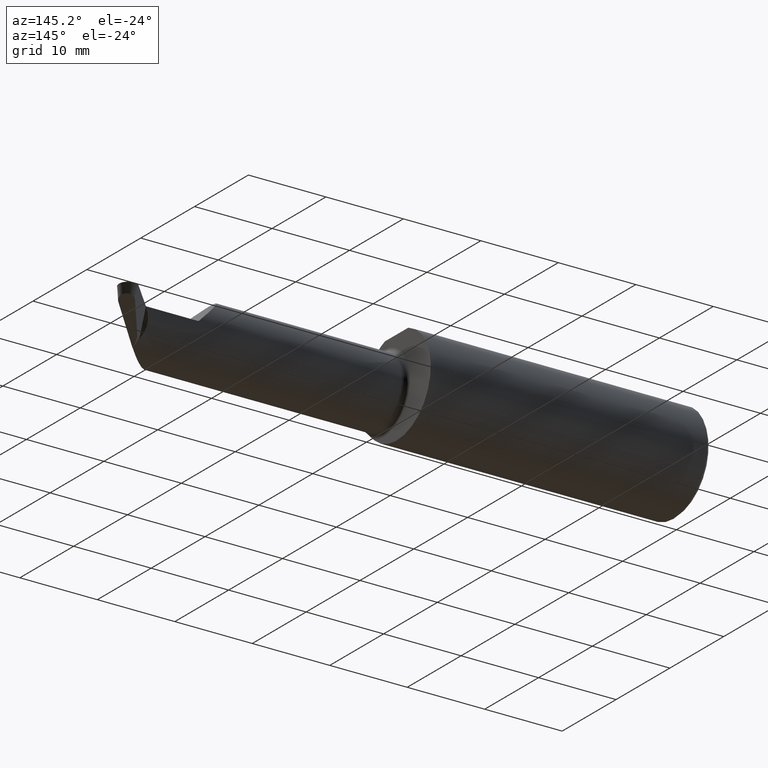
[diagram: clean part render]
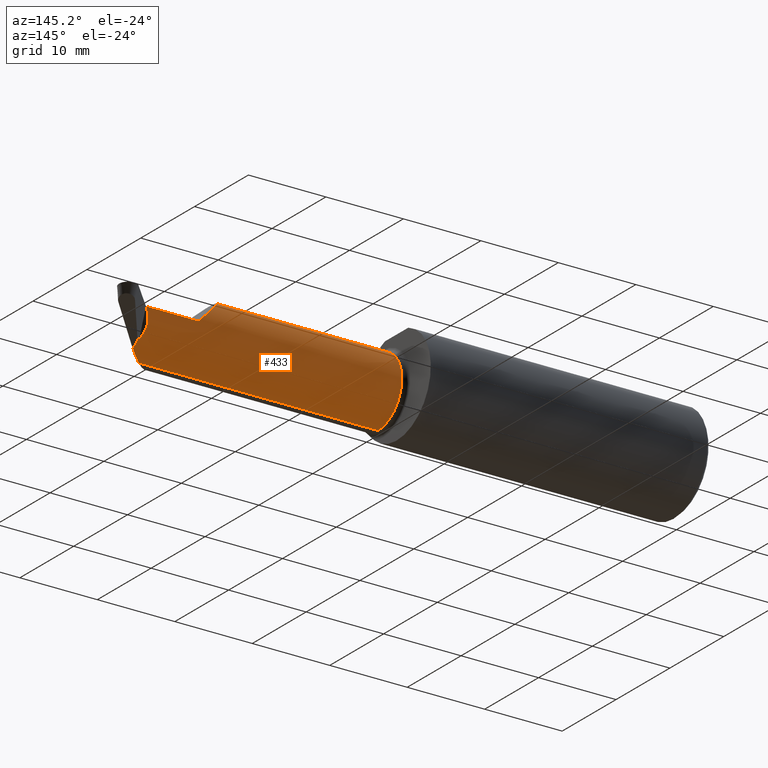
[diagram: same view with one face highlighted and labeled with its STEP entity id]
A machine part, auxiliary view. The second image highlights one B-rep face of the part: STEP entity #433.
In plain terms, the highlighted cylindrical surface (partial cylindrical patch) has radius 4.4196 mm, axis along (-1, -0, -0).
Its self-contained STEP definition (entity closure, byte-faithful):
#16 = CARTESIAN_POINT ( 'NONE',  ( 2.744463120595628247, 0.02262425438726834923, -0.1236489610651902854 ) ) ;
#18 = CARTESIAN_POINT ( 'NONE',  ( 2.731886890911535026, 0.06820596704990193604, -0.04548531219329627479 ) ) ;
#23 = CARTESIAN_POINT ( 'NONE',  ( 2.729262707662182486, 0.05521386511994788582, -0.07917076052382532314 ) ) ;
#29 = CARTESIAN_POINT ( 'NONE',  ( 2.747209855509363141, 0.07415000000000039615, 1.912293595564984056E-15 ) ) ;
#40 = CARTESIAN_POINT ( 'NONE',  ( 2.747209855509363585, -0.02183442268399144945, -0.1555299639813816637 ) ) ;
#49 = LINE ( 'NONE', #364, #88 ) ;
#60 = CARTESIAN_POINT ( 'NONE',  ( 1.446699999999999875, -0.09985000000000000819, 0.1740000000000005431 ) ) ;
#69 = CARTESIAN_POINT ( 'NONE',  ( 2.480000000000000426, 0.07415000000000021574, -5.549066237130534971E-17 ) ) ;
#73 = CARTESIAN_POINT ( 'NONE',  ( 2.747209855509363585, 0.02761542476122566189, -0.1184422453791050822 ) ) ;
#75 = VERTEX_POINT ( 'NONE', #40 ) ;
#88 = VECTOR ( 'NONE', #430, 39.37007874015748143 ) ;
#90 = AXIS2_PLACEMENT_3D ( 'NONE', #95, #793, #720 ) ;
#95 = CARTESIAN_POINT ( 'NONE',  ( 1.446699999999999875, -0.09985000000000000819, 0.000000000000000000 ) ) ;
#108 = VERTEX_POINT ( 'NONE', #653 ) ;
#123 = CARTESIAN_POINT ( 'NONE',  ( 2.306000000000002270, 0.002076840147081597272, 0.1740000000000002378 ) ) ;
#137 = CARTESIAN_POINT ( 'NONE',  ( 2.742935276533843503, 0.02000971208805929838, -0.1261334587576465882 ) ) ;
#150 = DIRECTION ( 'NONE',  ( -1.000000000000000000, -0.000000000000000000, -0.000000000000000000 ) ) ;
#153 = CARTESIAN_POINT ( 'NONE',  ( 2.733139793779888027, 0.06967497622605479946, -0.03964660771062596817 ) ) ;
#157 = ORIENTED_EDGE ( 'NONE', *, *, #545, .F. ) ;
#166 = VECTOR ( 'NONE', #628, 39.37007874015748143 ) ;
#174 = DIRECTION ( 'NONE',  ( 0.000000000000000000, 0.000000000000000000, 1.000000000000000000 ) ) ;
#175 = CARTESIAN_POINT ( 'NONE',  ( 2.747209855509363585, -0.02183442268399144945, -0.1555299639813816637 ) ) ;
#176 = VERTEX_POINT ( 'NONE', #798 ) ;
#192 = DIRECTION ( 'NONE',  ( -1.000000000000000000, -0.000000000000000000, -0.000000000000000000 ) ) ;
#193 = AXIS2_PLACEMENT_3D ( 'NONE', #406, #150, #174 ) ;
#198 = ORIENTED_EDGE ( 'NONE', *, *, #233, .F. ) ;
#199 = CARTESIAN_POINT ( 'NONE',  ( 2.747209855509363141, 0.07415000000000039615, 1.912293595564984056E-15 ) ) ;
#200 = LINE ( 'NONE', #691, #166 ) ;
#233 = EDGE_CURVE ( 'NONE', #349, #75, #598, .T. ) ;
#256 = EDGE_CURVE ( 'NONE', #349, #108, #49, .T. ) ;
#257 = AXIS2_PLACEMENT_3D ( 'NONE', #263, #192, #440 ) ;
#260 = CIRCLE ( 'NONE', #90, 0.1740000000000005431 ) ;
#262 = CARTESIAN_POINT ( 'NONE',  ( 2.731118852781456052, 0.04614295590628650356, -0.09485372060500768532 ) ) ;
#263 = CARTESIAN_POINT ( 'NONE',  ( 1.421699999999999964, -0.09985000000000000819, 0.000000000000000000 ) ) ;
#273 = CARTESIAN_POINT ( 'NONE',  ( 2.747209855509363585, 0.02761542476122566189, -0.1184422453791050822 ) ) ;
#276 = EDGE_CURVE ( 'NONE', #176, #475, #321, .T. ) ;
#299 = CARTESIAN_POINT ( 'NONE',  ( 2.306000000000002714, -0.09985000000000000819, 0.1740000000000002378 ) ) ;
#303 = CARTESIAN_POINT ( 'NONE',  ( 2.691783994665847057, -0.07263796445558698411, -0.1740000000000002933 ) ) ;
#310 = CARTESIAN_POINT ( 'NONE',  ( 2.378073159852920337, 0.07415000000000025737, 0.1019268401470815599 ) ) ;
#311 = ORIENTED_EDGE ( 'NONE', *, *, #472, .T. ) ;
#314 = CARTESIAN_POINT ( 'NONE',  ( 2.745888439377190959, 0.02516030885773843512, -0.1210843971761477872 ) ) ;
#315 = VERTEX_POINT ( 'NONE', #60 ) ;
#321 =( BOUNDED_CURVE ( )  B_SPLINE_CURVE ( 3, ( #299, #123, #310, #617 ),
 .UNSPECIFIED., .F., .F. ) 
 B_SPLINE_CURVE_WITH_KNOTS ( ( 4, 4 ),
 ( 0.000000000000000000, 1.570796326794896780 ),
 .UNSPECIFIED. ) 
 CURVE ( )  GEOMETRIC_REPRESENTATION_ITEM ( )  RATIONAL_B_SPLINE_CURVE ( ( 1.000000000000000000, 0.8047378541243649375, 0.8047378541243649375, 1.000000000000000000 ) ) 
 REPRESENTATION_ITEM ( '' )  );
#323 = CARTESIAN_POINT ( 'NONE',  ( 2.742935276533843503, 0.02000971208805929838, -0.1261334587576465882 ) ) ;
#349 = VERTEX_POINT ( 'NONE', #669 ) ;
#364 = CARTESIAN_POINT ( 'NONE',  ( 1.421699999999999964, -0.09984999999999999432, -0.1740000000000002378 ) ) ;
#371 = CARTESIAN_POINT ( 'NONE',  ( 2.720501376327328025, -0.04615791066147760524, -0.1677308988258711109 ) ) ;
#387 = FACE_OUTER_BOUND ( 'NONE', #542, .T. ) ;
#399 = VECTOR ( 'NONE', #797, 39.37007874015748143 ) ;
#400 = EDGE_CURVE ( 'NONE', #770, #591, #712, .T. ) ;
#402 = CARTESIAN_POINT ( 'NONE',  ( 2.729532060954608319, 0.06263298279816732761, -0.06254356323277281138 ) ) ;
#406 = CARTESIAN_POINT ( 'NONE',  ( 2.747209855509363585, -0.09985000000000000819, 0.000000000000000000 ) ) ;
#430 = DIRECTION ( 'NONE',  ( -1.000000000000000000, -0.000000000000000000, -0.000000000000000000 ) ) ;
#433 = ADVANCED_FACE ( 'NONE', ( #387 ), #568, .T. ) ;
#440 = DIRECTION ( 'NONE',  ( 0.000000000000000000, 0.000000000000000000, 1.000000000000000000 ) ) ;
#446 = CARTESIAN_POINT ( 'NONE',  ( 2.730269418181518137, 0.04932269850192780997, -0.08977927160269914830 ) ) ;
#458 = CARTESIAN_POINT ( 'NONE',  ( 2.737784481426323246, 0.07310948323515036040, -0.02234505378486124905 ) ) ;
#464 = CARTESIAN_POINT ( 'NONE',  ( 1.421699999999999964, -0.09985000000000000819, 0.1740000000000002378 ) ) ;
#467 = ORIENTED_EDGE ( 'NONE', *, *, #256, .T. ) ;
#472 = EDGE_CURVE ( 'NONE', #475, #818, #200, .T. ) ;
#475 = VERTEX_POINT ( 'NONE', #69 ) ;
#487 = ORIENTED_EDGE ( 'NONE', *, *, #553, .F. ) ;
#523 = CARTESIAN_POINT ( 'NONE',  ( 2.742027741118144402, 0.07415000000000000757, -0.01106816904816990479 ) ) ;
#542 = EDGE_LOOP ( 'NONE', ( #198, #467, #487, #157, #788, #311, #557, #629, #622 ) ) ;
#545 = EDGE_CURVE ( 'NONE', #176, #315, #593, .T. ) ;
#553 = EDGE_CURVE ( 'NONE', #315, #108, #260, .T. ) ;
#557 = ORIENTED_EDGE ( 'NONE', *, *, #735, .T. ) ;
#568 = CYLINDRICAL_SURFACE ( 'NONE', #257, 0.1740000000000002378 ) ;
#572 = CARTESIAN_POINT ( 'NONE',  ( 2.730090487902291585, 0.06468878021623224173, -0.05690967836276867448 ) ) ;
#591 = VERTEX_POINT ( 'NONE', #273 ) ;
#593 = LINE ( 'NONE', #464, #399 ) ;
#594 = CIRCLE ( 'NONE', #193, 0.1739999999999999880 ) ;
#598 =( BOUNDED_CURVE ( )  B_SPLINE_CURVE ( 3, ( #755, #303, #371, #175 ),
 .UNSPECIFIED., .F., .T. ) 
 B_SPLINE_CURVE_WITH_KNOTS ( ( 4, 4 ),
 ( 1.523084436873744174, 1.988020202971614303 ),
 .UNSPECIFIED. ) 
 CURVE ( )  GEOMETRIC_REPRESENTATION_ITEM ( )  RATIONAL_B_SPLINE_CURVE ( ( 1.000000000000000000, 0.9820672057869664906, 0.9820672057869664906, 1.000000000000000000 ) ) 
 REPRESENTATION_ITEM ( '' )  );
#605 = EDGE_CURVE ( 'NONE', #591, #75, #594, .T. ) ;
#617 = CARTESIAN_POINT ( 'NONE',  ( 2.480000000000000426, 0.07415000000000021574, -5.549066237130534971E-17 ) ) ;
#622 = ORIENTED_EDGE ( 'NONE', *, *, #605, .T. ) ;
#628 = DIRECTION ( 'NONE',  ( 1.000000000000000000, 0.000000000000000000, 0.000000000000000000 ) ) ;
#629 = ORIENTED_EDGE ( 'NONE', *, *, #400, .T. ) ;
#651 = CARTESIAN_POINT ( 'NONE',  ( 2.734630657006112742, 0.03594711890399000104, -0.1094341283368433504 ) ) ;
#653 = CARTESIAN_POINT ( 'NONE',  ( 1.446699999999999875, -0.09984999999999999432, -0.1740000000000005431 ) ) ;
#669 = CARTESIAN_POINT ( 'NONE',  ( 2.662602659211939837, -0.09984999999999999432, -0.1740000000000002378 ) ) ;
#691 = CARTESIAN_POINT ( 'NONE',  ( 1.421699999999999964, 0.07415000000000020186, -5.549066237130534971E-17 ) ) ;
#698 = CARTESIAN_POINT ( 'NONE',  ( 2.742935276533843503, 0.02000971208805929838, -0.1261334587576465882 ) ) ;
#712 =( BOUNDED_CURVE ( )  B_SPLINE_CURVE ( 3, ( #323, #16, #314, #73 ),
 .UNSPECIFIED., .F., .F. ) 
 B_SPLINE_CURVE_WITH_KNOTS ( ( 4, 4 ),
 ( 2.705056901956499615, 2.767232025981808174 ),
 .UNSPECIFIED. ) 
 CURVE ( )  GEOMETRIC_REPRESENTATION_ITEM ( )  RATIONAL_B_SPLINE_CURVE ( ( 1.000000000000000000, 0.9996778804396321272, 0.9996778804396321272, 1.000000000000000000 ) ) 
 REPRESENTATION_ITEM ( '' )  );
#720 = DIRECTION ( 'NONE',  ( 0.000000000000000000, 0.000000000000000000, 1.000000000000000000 ) ) ;
#722 = B_SPLINE_CURVE_WITH_KNOTS ( 'NONE', 3,
 ( #199, #523, #458, #153, #18, #572, #402, #780, #23, #446, #262, #651, #772, #698 ),
 .UNSPECIFIED., .F., .F.,
 ( 4, 2, 2, 2, 2, 2, 4 ),
 ( 1.282222523545573990E-16, 0.0009210645519938710519, 0.001381596827990742285, 0.001842129103987613734, 0.002302661379984485401, 0.002763193655981356633, 0.003684258207975107773 ),
 .UNSPECIFIED. ) ;
#735 = EDGE_CURVE ( 'NONE', #818, #770, #722, .T. ) ;
#755 = CARTESIAN_POINT ( 'NONE',  ( 2.662602659211939837, -0.09984999999999999432, -0.1740000000000002378 ) ) ;
#770 = VERTEX_POINT ( 'NONE', #137 ) ;
#772 = CARTESIAN_POINT ( 'NONE',  ( 2.738296579641648965, 0.02821845109425471371, -0.1183330138671384174 ) ) ;
#780 = CARTESIAN_POINT ( 'NONE',  ( 2.729115166841885820, 0.05790952544215768882, -0.07365018080837670844 ) ) ;
#788 = ORIENTED_EDGE ( 'NONE', *, *, #276, .T. ) ;
#793 = DIRECTION ( 'NONE',  ( -1.000000000000000000, -0.000000000000000000, -0.000000000000000000 ) ) ;
#797 = DIRECTION ( 'NONE',  ( -1.000000000000000000, -0.000000000000000000, -0.000000000000000000 ) ) ;
#798 = CARTESIAN_POINT ( 'NONE',  ( 2.306000000000002714, -0.09985000000000000819, 0.1740000000000002378 ) ) ;
#818 = VERTEX_POINT ( 'NONE', #29 ) ;